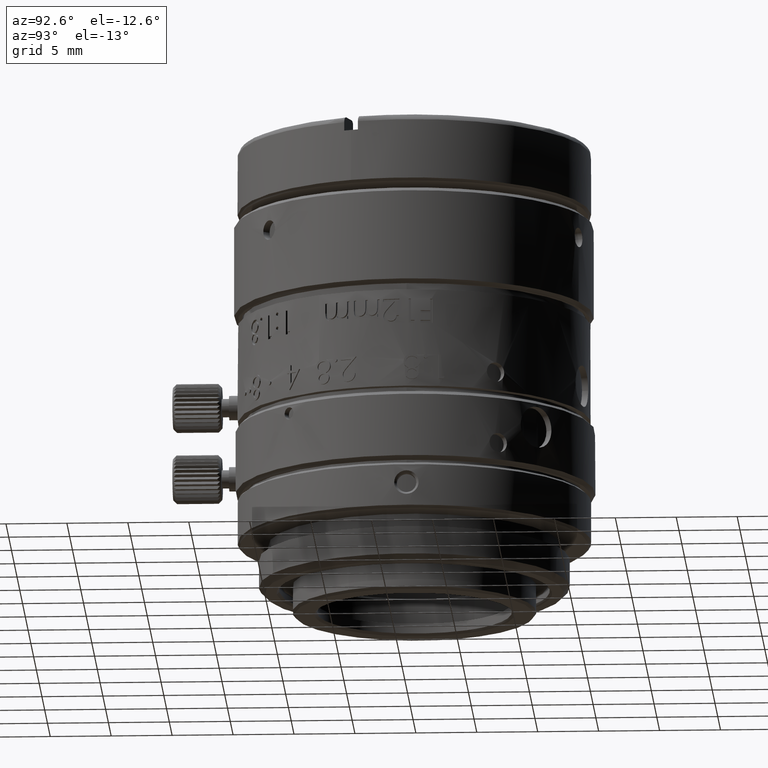
[diagram: clean part render]
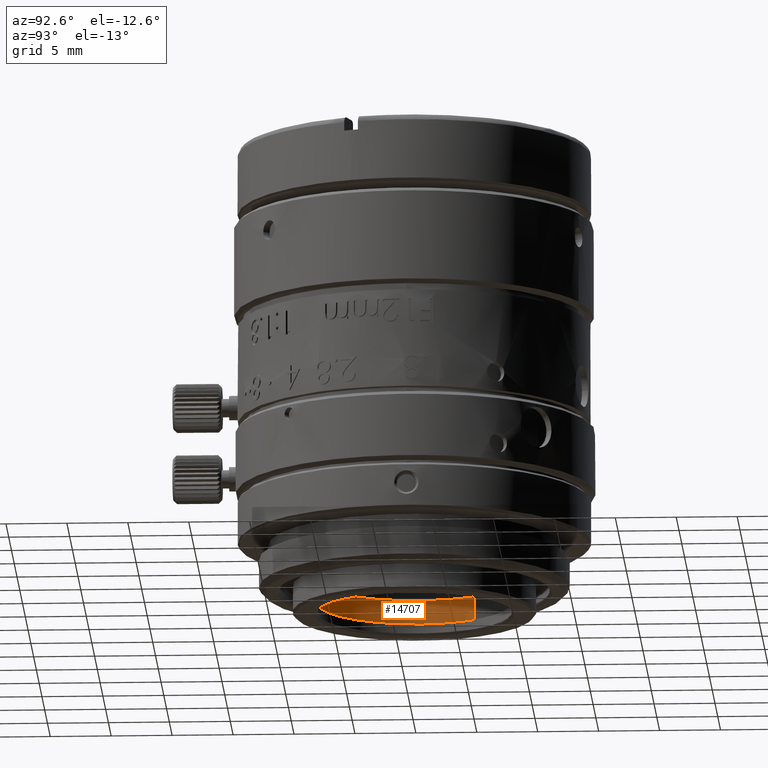
[diagram: same view with one face highlighted and labeled with its STEP entity id]
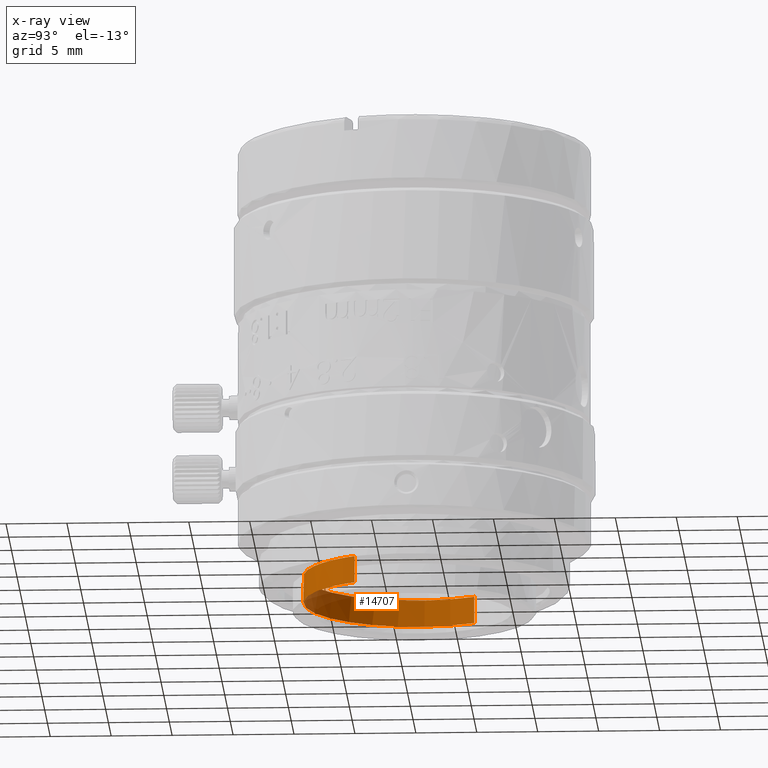
[diagram: x-ray of the same camera — body ghosted, the highlighted face saturated]
A machine part, auxiliary view. The second image highlights one B-rep face of the part: STEP entity #14707.
The next image is the same camera in x-ray: the body ghosted, the highlighted face saturated — about 8% of this face is hidden behind the body in this view.
In plain terms, the highlighted face is a freeform B-spline surface patch.
Its self-contained STEP definition (entity closure, byte-faithful):
#295 = CARTESIAN_POINT ( 'NONE',  ( 7.952402742870418706, -18.35674917325867384, -14.12861539000000022 ) ) ;
#1144 = CARTESIAN_POINT ( 'NONE',  ( -16.61519698266839384, -24.48215023650648448, -14.12861539000000022 ) ) ;
#1454 = VERTEX_POINT ( 'NONE', #36706 ) ;
#2027 = ORIENTED_EDGE ( 'NONE', *, *, #8758, .F. ) ;
#2695 = CARTESIAN_POINT ( 'NONE',  ( -8.668137033220180143, -14.46797010049614229, -14.12861539000000377 ) ) ;
#2880 = CARTESIAN_POINT ( 'NONE',  ( -8.725472330320004133, -12.68113638324408221, -14.12861539000000910 ) ) ;
#3075 = CARTESIAN_POINT ( 'NONE',  ( -0.2281404274749636030, -22.38316698626404744, -14.12861539000000555 ) ) ;
#3159 = CARTESIAN_POINT ( 'NONE',  ( 8.251555908229910585, -17.83951519673799879, -11.92861538999999915 ) ) ;
#3283 = CARTESIAN_POINT ( 'NONE',  ( -1.991826206306849922, -22.09080662708784004, -14.12861539000000022 ) ) ;
#3651 = EDGE_LOOP ( 'NONE', ( #21319, #23662, #2027, #12660 ) ) ;
#3935 = CARTESIAN_POINT ( 'NONE',  ( -7.503138062868914382, -8.727456271231345042, -14.12861539000000022 ) ) ;
#4485 = B_SPLINE_CURVE_WITH_KNOTS ( 'NONE', 1,
 ( #33005, #38814 ),
 .UNSPECIFIED., .F., .F.,
 ( 2, 2 ),
 ( -1.000000000000000000, 0.0000000000000000000 ),
 .UNSPECIFIED. ) ;
#6074 = CARTESIAN_POINT ( 'NONE',  ( -6.486162701998015478, -19.29200674350576605, -14.12861539000000199 ) ) ;
#6275 = CARTESIAN_POINT ( 'NONE',  ( -8.263309456097289285, -16.20928475223996301, -14.12861538999999489 ) ) ;
#6745 = CARTESIAN_POINT ( 'NONE',  ( -16.61519698266839384, -24.48215023650648448, -11.92861538999999738 ) ) ;
#8758 = EDGE_CURVE ( 'NONE', #1454, #37481, #16293, .T. ) ;
#9036 = CARTESIAN_POINT ( 'NONE',  ( 8.251555908229910585, -17.83951519673799879, -11.92861538999999915 ) ) ;
#9079 = CARTESIAN_POINT ( 'NONE',  ( -7.212924565530299148, -18.34337004812934424, -14.12861539000000022 ) ) ;
#9471 = CARTESIAN_POINT ( 'NONE',  ( 6.817045295751159806, -19.73770011115997036, -14.12861538999999844 ) ) ;
#11695 = CARTESIAN_POINT ( 'NONE',  ( -6.080005455531756198, -19.72632210672940900, -14.12861538999999489 ) ) ;
#11749 = EDGE_CURVE ( 'NONE', #36776, #37050, #30334, .T. ) ;
#12484 = CARTESIAN_POINT ( 'NONE',  ( 6.382729932536896023, -20.14385735765711161, -14.12861539000000377 ) ) ;
#12589 = CARTESIAN_POINT ( 'NONE',  ( 8.251555905321449558, -17.83951519769194860, -14.12861539000000022 ) ) ;
#12660 = ORIENTED_EDGE ( 'NONE', *, *, #17055, .F. ) ;
#14108 = CARTESIAN_POINT ( 'NONE',  ( 8.251555908229910585, -17.83951519673799879, -11.92861538999999915 ) ) ;
#14707 = ADVANCED_FACE ( 'NONE', ( #27918 ), #38592, .T. ) ;
#14973 = CARTESIAN_POINT ( 'NONE',  ( -7.503138062229909977, -8.727456269261999466, -11.92861538999999915 ) ) ;
#15273 = CARTESIAN_POINT ( 'NONE',  ( 0.3661634613692931195, -22.40307775595605122, -14.12861539000000199 ) ) ;
#15478 = CARTESIAN_POINT ( 'NONE',  ( 4.928885766893428944, -21.18424154670609738, -14.12861539000000732 ) ) ;
#15952 = CARTESIAN_POINT ( 'NONE',  ( 8.251555906999998413, -17.83951519799999730, -11.92861538999999915 ) ) ;
#16293 = B_SPLINE_CURVE_WITH_KNOTS ( 'NONE', 3,
 ( #17893, #24089, #33449, #30069, #36451, #2880, #21099, #2695, #27864, #6275, #21488, #33253, #9079, #6074, #11695, #30454, #36858, #23891, #33057, #3283, #18089, #3075, #15273, #36064, #33851, #27456, #30256, #15478, #27661, #12484, #9471, #27260, #295, #24667 ),
 .UNSPECIFIED., .F., .F.,
 ( 4, 2, 2, 2, 2, 2, 2, 2, 2, 2, 2, 2, 2, 2, 2, 2, 4 ),
 ( 2.617228629061850054, 2.813578169907773319, 3.009927710753696584, 3.206277251599619849, 3.402626792445543114, 3.598976333291466823, 3.795325874137390532, 3.991675414983314241, 4.188024955829238394, 4.384374496675162547, 4.580724037521085812, 4.777073578367009965, 4.973423119212933230, 5.169772660058857383, 5.366122200904781536, 5.562471741750705689, 5.758821282596629842 ),
 .UNSPECIFIED. ) ;
#17055 = EDGE_CURVE ( 'NONE', #36776, #1454, #4485, .T. ) ;
#17893 = CARTESIAN_POINT ( 'NONE',  ( -7.503138061173459938, -8.727456270933839022, -14.12861539000000022 ) ) ;
#18089 = CARTESIAN_POINT ( 'NONE',  ( -1.412826117641103219, -22.22627777687797135, -14.12861539000000377 ) ) ;
#18938 = CARTESIAN_POINT ( 'NONE',  ( -0.8605030192621651031, -33.59420915953730713, -11.92861538999999738 ) ) ;
#20402 = CARTESIAN_POINT ( 'NONE',  ( -7.503138062229909977, -8.727456269261999466, -11.92861538999999915 ) ) ;
#21099 = CARTESIAN_POINT ( 'NONE',  ( -8.745383100027217083, -13.27544027211682653, -14.12861539000000199 ) ) ;
#21118 = B_SPLINE_CURVE_WITH_KNOTS ( 'NONE', 1,
 ( #39019, #9036 ),
 .UNSPECIFIED., .F., .F.,
 ( 2, 2 ),
 ( -1.000000000000000000, 0.0000000000000000000 ),
 .UNSPECIFIED. ) ;
#21319 = ORIENTED_EDGE ( 'NONE', *, *, #11749, .T. ) ;
#21488 = CARTESIAN_POINT ( 'NONE',  ( -8.054274366025047982, -16.76596945574525677, -14.12861539000000022 ) ) ;
#23662 = ORIENTED_EDGE ( 'NONE', *, *, #32592, .F. ) ;
#23891 = CARTESIAN_POINT ( 'NONE',  ( -3.664586562596059860, -21.45998587368879740, -14.12861539000000199 ) ) ;
#24089 = CARTESIAN_POINT ( 'NONE',  ( -7.802291217694706127, -9.244690247936366845, -14.12861539000000555 ) ) ;
#24667 = CARTESIAN_POINT ( 'NONE',  ( 8.251555905321449558, -17.83951519769194860, -14.12861539000000022 ) ) ;
#24924 = CARTESIAN_POINT ( 'NONE',  ( 8.251555906999998413, -17.83951519799999730, -14.12861539000000022 ) ) ;
#27260 = CARTESIAN_POINT ( 'NONE',  ( 7.605669989481701698, -18.83983295187795548, -14.12861539000000199 ) ) ;
#27456 = CARTESIAN_POINT ( 'NONE',  ( 3.300007941367662845, -21.92100411192370757, -14.12861539000000199 ) ) ;
#27661 = CARTESIAN_POINT ( 'NONE',  ( 5.434093237185287251, -20.87061922124935620, -14.12861539000000199 ) ) ;
#27864 = CARTESIAN_POINT ( 'NONE',  ( -8.571722304434189255, -15.05473899652077918, -14.12861538999999844 ) ) ;
#27918 = FACE_OUTER_BOUND ( 'NONE', #3651, .T. ) ;
#30069 = CARTESIAN_POINT ( 'NONE',  ( -8.433111971109592986, -10.91745060432135261, -14.12861538999999311 ) ) ;
#30256 = CARTESIAN_POINT ( 'NONE',  ( 3.856692644852471652, -21.71196902182651556, -14.12861538999999844 ) ) ;
#30334 =( BOUNDED_CURVE ( )  B_SPLINE_CURVE ( 3, ( #14973, #33533, #30340, #3159 ),
 .UNSPECIFIED., .F., .F. ) 
 B_SPLINE_CURVE_WITH_KNOTS ( ( 4, 4 ),
 ( -3.141592653589795336, 0.0000000000000000000 ),
 .UNSPECIFIED. ) 
 CURVE ( )  GEOMETRIC_REPRESENTATION_ITEM ( )  RATIONAL_B_SPLINE_CURVE ( ( 1.000000000000000000, 0.3333333335299311084, 0.3333333335299311084, 1.000000000000000000 ) ) 
 REPRESENTATION_ITEM ( '' )  );
#30340 = CARTESIAN_POINT ( 'NONE',  ( -0.8605030212732925898, -33.59420915648624373, -11.92861538999999915 ) ) ;
#30454 = CARTESIAN_POINT ( 'NONE',  ( -5.182138296313382853, -20.51494680047260744, -14.12861538999999667 ) ) ;
#32592 = EDGE_CURVE ( 'NONE', #37481, #37050, #21118, .T. ) ;
#33005 = CARTESIAN_POINT ( 'NONE',  ( -7.503138062229909977, -8.727456269261999466, -11.92861538999999915 ) ) ;
#33057 = CARTESIAN_POINT ( 'NONE',  ( -3.123140907689307078, -21.70581130108846324, -14.12861539000000199 ) ) ;
#33253 = CARTESIAN_POINT ( 'NONE',  ( -7.526546890958571545, -17.83816257782224568, -14.12861539000000022 ) ) ;
#33449 = CARTESIAN_POINT ( 'NONE',  ( -8.048116645097548982, -9.786135902875264136, -14.12861538999999667 ) ) ;
#33533 = CARTESIAN_POINT ( 'NONE',  ( -16.61519698103199261, -24.48215023367716014, -11.92861538999999915 ) ) ;
#33851 = CARTESIAN_POINT ( 'NONE',  ( 2.145462185694347212, -22.22941696030649084, -14.12861539000000022 ) ) ;
#33904 = CARTESIAN_POINT ( 'NONE',  ( -0.8605030192621651031, -33.59420915953730713, -14.12861539000000022 ) ) ;
#34113 = CARTESIAN_POINT ( 'NONE',  ( -7.503138062868914382, -8.727456271231345042, -11.92861538999999915 ) ) ;
#36064 = CARTESIAN_POINT ( 'NONE',  ( 1.558693289694691009, -22.32583168911295246, -14.12861539000000022 ) ) ;
#36451 = CARTESIAN_POINT ( 'NONE',  ( -8.568583120909087469, -11.49645069301800149, -14.12861539000000199 ) ) ;
#36706 = CARTESIAN_POINT ( 'NONE',  ( -7.503138061173459938, -8.727456270933839022, -14.12861539000000022 ) ) ;
#36776 = VERTEX_POINT ( 'NONE', #20402 ) ;
#36858 = CARTESIAN_POINT ( 'NONE',  ( -4.699054517726255931, -20.86167955386447659, -14.12861539000000022 ) ) ;
#37050 = VERTEX_POINT ( 'NONE', #14108 ) ;
#37481 = VERTEX_POINT ( 'NONE', #12589 ) ;
#38592 =( BOUNDED_SURFACE ( )  B_SPLINE_SURFACE ( 1, 3, ( 
 ( #3935, #1144, #33904, #24924 ),
 ( #34113, #6745, #18938, #15952 ) ),
 .UNSPECIFIED., .F., .F., .T. ) 
 B_SPLINE_SURFACE_WITH_KNOTS ( ( 2, 2 ),
 ( 4, 4 ),
 ( 0.0000000000000000000, 1.000000000000000000 ),
 ( 0.0000000000000000000, 1.000000000000000000 ),
 .UNSPECIFIED. ) 
 GEOMETRIC_REPRESENTATION_ITEM ( )  RATIONAL_B_SPLINE_SURFACE ( (
 ( 1.000000000000000000, 0.3333333334700690487, 0.3333333334700690487, 1.000000000000000000),
 ( 1.000000000000000000, 0.3333333334700690487, 0.3333333334700690487, 1.000000000000000000) ) ) 
 REPRESENTATION_ITEM ( '' )  SURFACE ( )  );
#38814 = CARTESIAN_POINT ( 'NONE',  ( -7.503138061173459938, -8.727456270933839022, -14.12861539000000022 ) ) ;
#39019 = CARTESIAN_POINT ( 'NONE',  ( 8.251555905321449558, -17.83951519769194860, -14.12861539000000022 ) ) ;